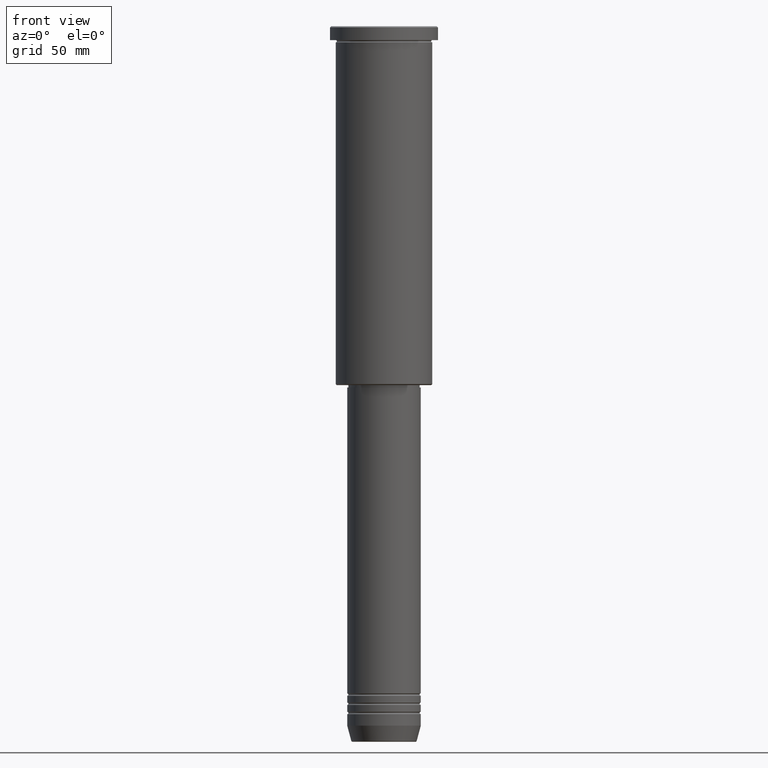
[diagram: clean part render]
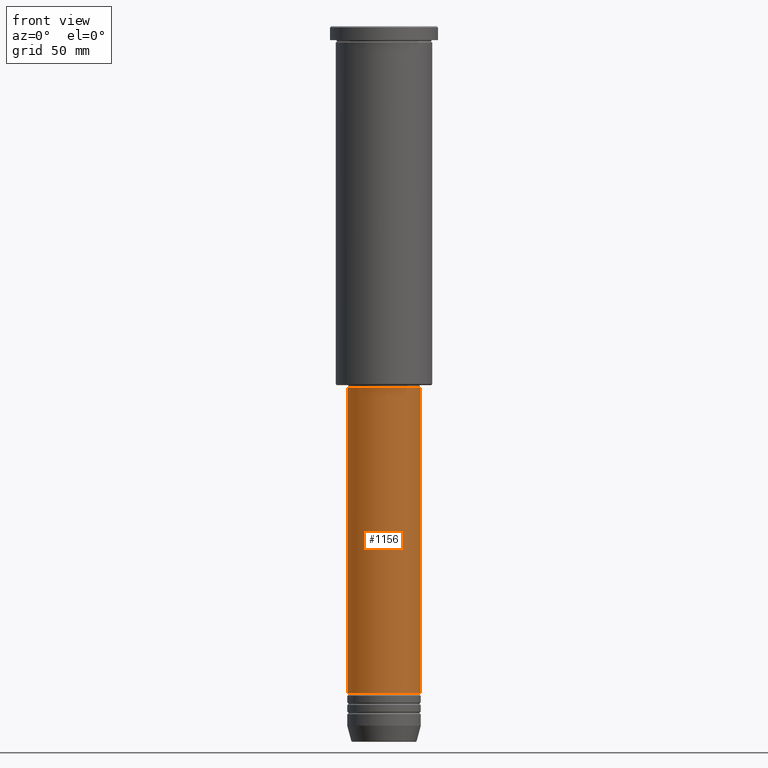
[diagram: same view with one face highlighted and labeled with its STEP entity id]
A machine part, front view. The second image highlights one B-rep face of the part: STEP entity #1156.
In plain terms, the highlighted cylindrical surface (partial cylindrical patch) has radius 16 mm, axis along (-0, -0, 1).
Its self-contained STEP definition (entity closure, byte-faithful):
#18 = CARTESIAN_POINT ( 'NONE',  ( 16.00000000000000355, 0.000000000000000000, -156.9999999999999147 ) ) ;
#39 = EDGE_CURVE ( 'NONE', #552, #861, #168, .T. ) ;
#42 = DIRECTION ( 'NONE',  ( 1.000000000000000000, 0.000000000000000000, 0.000000000000000000 ) ) ;
#66 = DIRECTION ( 'NONE',  ( -0.000000000000000000, -0.000000000000000000, 1.000000000000000000 ) ) ;
#120 = LINE ( 'NONE', #667, #336 ) ;
#125 = CARTESIAN_POINT ( 'NONE',  ( 0.000000000000000000, 0.000000000000000000, 0.000000000000000000 ) ) ;
#137 = CARTESIAN_POINT ( 'NONE',  ( 0.000000000000000000, 0.000000000000000000, -289.9999999999999432 ) ) ;
#152 = VECTOR ( 'NONE', #1148, 1000.000000000000000 ) ;
#160 = DIRECTION ( 'NONE',  ( -0.000000000000000000, -0.000000000000000000, 1.000000000000000000 ) ) ;
#168 = CIRCLE ( 'NONE', #1063, 16.00000000000000000 ) ;
#176 = ORIENTED_EDGE ( 'NONE', *, *, #519, .T. ) ;
#199 = VERTEX_POINT ( 'NONE', #363 ) ;
#303 = ORIENTED_EDGE ( 'NONE', *, *, #550, .F. ) ;
#336 = VECTOR ( 'NONE', #566, 1000.000000000000000 ) ;
#352 = EDGE_LOOP ( 'NONE', ( #1158, #1059, #176, #303 ) ) ;
#363 = CARTESIAN_POINT ( 'NONE',  ( -16.00000000000000355, 1.959434878635765526E-15, -156.9999999999999147 ) ) ;
#398 = CARTESIAN_POINT ( 'NONE',  ( 16.00000000000000000, 0.000000000000000000, -289.9999999999999432 ) ) ;
#406 = DIRECTION ( 'NONE',  ( 1.000000000000000000, 0.000000000000000000, 0.000000000000000000 ) ) ;
#474 = DIRECTION ( 'NONE',  ( -0.000000000000000000, -0.000000000000000000, 1.000000000000000000 ) ) ;
#510 = CARTESIAN_POINT ( 'NONE',  ( -16.00000000000000000, 1.959434878635765131E-15, -289.9999999999999432 ) ) ;
#519 = EDGE_CURVE ( 'NONE', #861, #1108, #692, .T. ) ;
#550 = EDGE_CURVE ( 'NONE', #199, #1108, #887, .T. ) ;
#552 = VERTEX_POINT ( 'NONE', #510 ) ;
#557 = CYLINDRICAL_SURFACE ( 'NONE', #572, 16.00000000000000000 ) ;
#566 = DIRECTION ( 'NONE',  ( -0.000000000000000000, -0.000000000000000000, 1.000000000000000000 ) ) ;
#572 = AXIS2_PLACEMENT_3D ( 'NONE', #125, #474, #406 ) ;
#580 = CARTESIAN_POINT ( 'NONE',  ( 0.000000000000000000, 0.000000000000000000, -156.9999999999999147 ) ) ;
#667 = CARTESIAN_POINT ( 'NONE',  ( -16.00000000000000000, 1.959434878635765131E-15, 0.000000000000000000 ) ) ;
#692 = LINE ( 'NONE', #1142, #152 ) ;
#861 = VERTEX_POINT ( 'NONE', #398 ) ;
#887 = CIRCLE ( 'NONE', #963, 16.00000000000000355 ) ;
#963 = AXIS2_PLACEMENT_3D ( 'NONE', #580, #160, #42 ) ;
#1059 = ORIENTED_EDGE ( 'NONE', *, *, #39, .T. ) ;
#1063 = AXIS2_PLACEMENT_3D ( 'NONE', #137, #66, #1074 ) ;
#1074 = DIRECTION ( 'NONE',  ( 1.000000000000000000, 0.000000000000000000, 0.000000000000000000 ) ) ;
#1108 = VERTEX_POINT ( 'NONE', #18 ) ;
#1112 = FACE_OUTER_BOUND ( 'NONE', #352, .T. ) ;
#1142 = CARTESIAN_POINT ( 'NONE',  ( 16.00000000000000000, 0.000000000000000000, 0.000000000000000000 ) ) ;
#1143 = EDGE_CURVE ( 'NONE', #552, #199, #120, .T. ) ;
#1148 = DIRECTION ( 'NONE',  ( -0.000000000000000000, -0.000000000000000000, 1.000000000000000000 ) ) ;
#1156 = ADVANCED_FACE ( 'NONE', ( #1112 ), #557, .T. ) ;
#1158 = ORIENTED_EDGE ( 'NONE', *, *, #1143, .F. ) ;